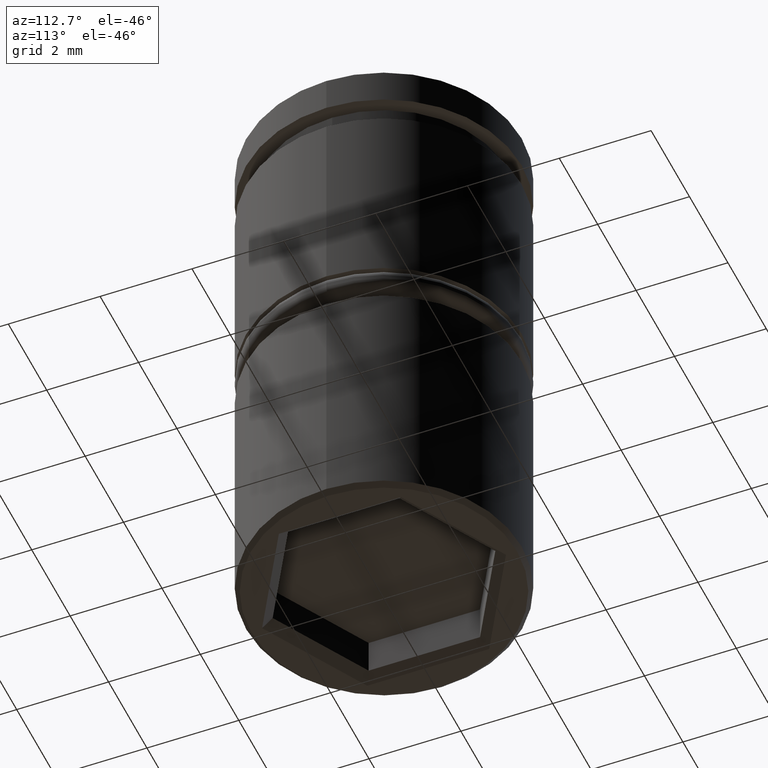
[diagram: clean part render]
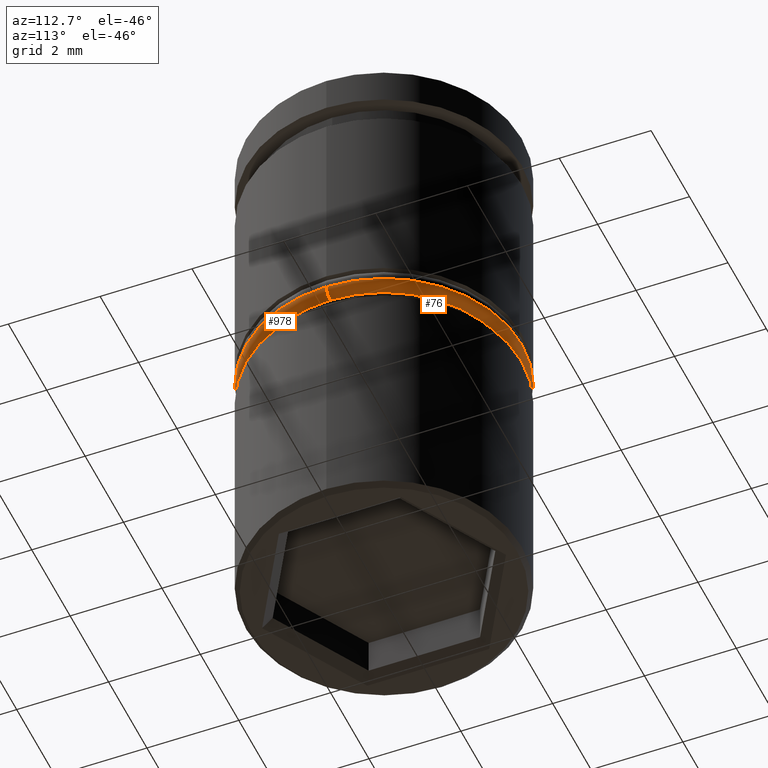
[diagram: same view with one multi-face feature highlighted, each face labeled with its STEP entity id]
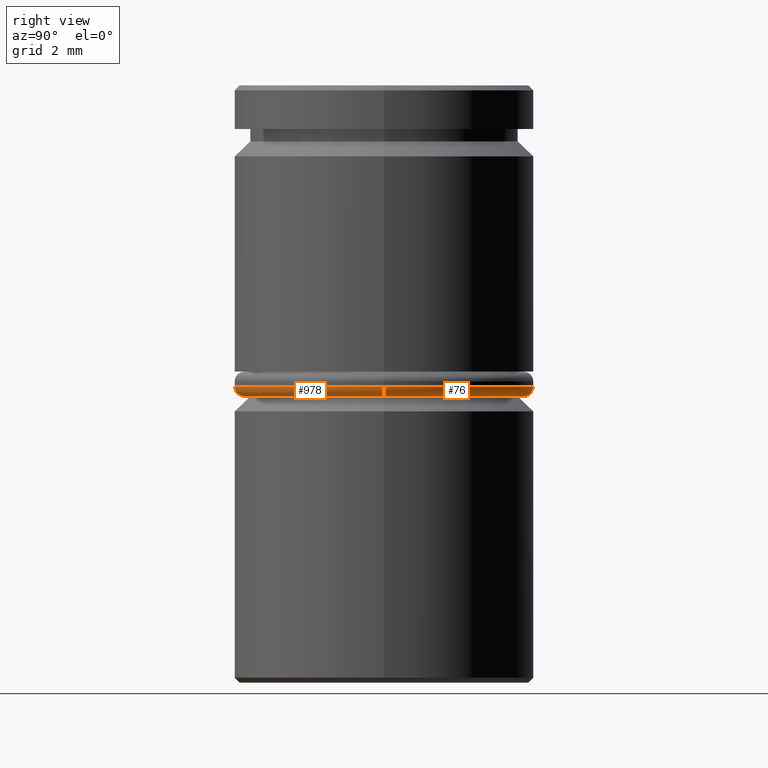
[diagram: same view with one multi-face feature highlighted, each face labeled with its STEP entity id]
A machine part, auxiliary view. The highlighted faces form ONE feature: a constant-radius fillet chain: 2 tangent blend faces with common blend radius 0.2 mm. The faces share edges in the B-rep.
A second angle (right view) of the same feature is appended — it is thin or edge-on in the first view.
Their STEP definitions:
[1] entity #76 (Torus):
#35 = CARTESIAN_POINT ( 'NONE',  ( 3.000000000000000444, 0.000000000000000000, -6.049999999999999822 ) ) ;
#40 = EDGE_CURVE ( 'NONE', #848, #593, #1037, .T. ) ;
#43 = CARTESIAN_POINT ( 'NONE',  ( -2.800000000000000266, 3.429011037612589276E-16, -6.049999999999999822 ) ) ;
#76 = ADVANCED_FACE ( 'NONE', ( #453 ), #310, .T. ) ;
#90 = DIRECTION ( 'NONE',  ( 0.000000000000000000, 0.000000000000000000, 1.000000000000000000 ) ) ;
#116 = AXIS2_PLACEMENT_3D ( 'NONE', #254, #811, #1174 ) ;
#196 = AXIS2_PLACEMENT_3D ( 'NONE', #795, #776, #437 ) ;
#200 = AXIS2_PLACEMENT_3D ( 'NONE', #358, #726, #1086 ) ;
#254 = CARTESIAN_POINT ( 'NONE',  ( 0.000000000000000000, 0.000000000000000000, -6.049999999999999822 ) ) ;
#267 = DIRECTION ( 'NONE',  ( 1.000000000000000000, 0.000000000000000000, 0.000000000000000000 ) ) ;
#297 = VERTEX_POINT ( 'NONE', #972 ) ;
#310 = TOROIDAL_SURFACE ( 'NONE', #116, 2.800000000000000266, 0.2000000000000000111 ) ;
#313 = AXIS2_PLACEMENT_3D ( 'NONE', #912, #90, #267 ) ;
#344 = CARTESIAN_POINT ( 'NONE',  ( 2.800000000000000266, 0.000000000000000000, -6.249999999999999112 ) ) ;
#352 = CIRCLE ( 'NONE', #313, 3.000000000000000444 ) ;
#358 = CARTESIAN_POINT ( 'NONE',  ( 0.000000000000000000, 0.000000000000000000, -6.249999999999999112 ) ) ;
#371 = AXIS2_PLACEMENT_3D ( 'NONE', #43, #867, #508 ) ;
#423 = ORIENTED_EDGE ( 'NONE', *, *, #40, .F. ) ;
#437 = DIRECTION ( 'NONE',  ( 0.000000000000000000, 0.000000000000000000, -1.000000000000000000 ) ) ;
#444 = EDGE_CURVE ( 'NONE', #593, #676, #352, .T. ) ;
#453 = FACE_OUTER_BOUND ( 'NONE', #1167, .T. ) ;
#508 = DIRECTION ( 'NONE',  ( -1.000000000000000000, 1.224646799147353207E-16, 0.000000000000000000 ) ) ;
#516 = ORIENTED_EDGE ( 'NONE', *, *, #444, .F. ) ;
#539 = EDGE_CURVE ( 'NONE', #297, #848, #947, .T. ) ;
#593 = VERTEX_POINT ( 'NONE', #35 ) ;
#676 = VERTEX_POINT ( 'NONE', #748 ) ;
#726 = DIRECTION ( 'NONE',  ( -0.000000000000000000, -0.000000000000000000, -1.000000000000000000 ) ) ;
#745 = EDGE_CURVE ( 'NONE', #297, #676, #1080, .T. ) ;
#748 = CARTESIAN_POINT ( 'NONE',  ( -3.000000000000000444, 3.673940397442060361E-16, -6.049999999999999822 ) ) ;
#776 = DIRECTION ( 'NONE',  ( 0.000000000000000000, -1.000000000000000000, 0.000000000000000000 ) ) ;
#795 = CARTESIAN_POINT ( 'NONE',  ( 2.800000000000000266, 0.000000000000000000, -6.049999999999999822 ) ) ;
#811 = DIRECTION ( 'NONE',  ( 0.000000000000000000, 0.000000000000000000, 1.000000000000000000 ) ) ;
#848 = VERTEX_POINT ( 'NONE', #344 ) ;
#867 = DIRECTION ( 'NONE',  ( 1.224646799147353207E-16, 1.000000000000000000, -0.000000000000000000 ) ) ;
#906 = ORIENTED_EDGE ( 'NONE', *, *, #745, .T. ) ;
#912 = CARTESIAN_POINT ( 'NONE',  ( 0.000000000000000000, 0.000000000000000000, -6.049999999999999822 ) ) ;
#947 = CIRCLE ( 'NONE', #200, 2.800000000000000266 ) ;
#972 = CARTESIAN_POINT ( 'NONE',  ( -2.800000000000000266, 3.551475717527324325E-16, -6.249999999999999112 ) ) ;
#1018 = ORIENTED_EDGE ( 'NONE', *, *, #539, .F. ) ;
#1037 = CIRCLE ( 'NONE', #196, 0.1999999999999996503 ) ;
#1080 = CIRCLE ( 'NONE', #371, 0.2000000000000000944 ) ;
#1086 = DIRECTION ( 'NONE',  ( 1.000000000000000000, 0.000000000000000000, 0.000000000000000000 ) ) ;
#1167 = EDGE_LOOP ( 'NONE', ( #1018, #906, #516, #423 ) ) ;
#1174 = DIRECTION ( 'NONE',  ( 1.000000000000000000, 0.000000000000000000, 0.000000000000000000 ) ) ;
[2] entity #978 (Torus):
#17 = ORIENTED_EDGE ( 'NONE', *, *, #40, .T. ) ;
#18 = CARTESIAN_POINT ( 'NONE',  ( 0.000000000000000000, 0.000000000000000000, -6.049999999999999822 ) ) ;
#35 = CARTESIAN_POINT ( 'NONE',  ( 3.000000000000000444, 0.000000000000000000, -6.049999999999999822 ) ) ;
#40 = EDGE_CURVE ( 'NONE', #848, #593, #1037, .T. ) ;
#43 = CARTESIAN_POINT ( 'NONE',  ( -2.800000000000000266, 3.429011037612589276E-16, -6.049999999999999822 ) ) ;
#84 = CIRCLE ( 'NONE', #1020, 3.000000000000000444 ) ;
#143 = AXIS2_PLACEMENT_3D ( 'NONE', #538, #903, #1090 ) ;
#144 = TOROIDAL_SURFACE ( 'NONE', #816, 2.800000000000000266, 0.2000000000000000111 ) ;
#168 = EDGE_CURVE ( 'NONE', #676, #593, #84, .T. ) ;
#196 = AXIS2_PLACEMENT_3D ( 'NONE', #795, #776, #437 ) ;
#297 = VERTEX_POINT ( 'NONE', #972 ) ;
#344 = CARTESIAN_POINT ( 'NONE',  ( 2.800000000000000266, 0.000000000000000000, -6.249999999999999112 ) ) ;
#361 = DIRECTION ( 'NONE',  ( 1.000000000000000000, 0.000000000000000000, 0.000000000000000000 ) ) ;
#371 = AXIS2_PLACEMENT_3D ( 'NONE', #43, #867, #508 ) ;
#437 = DIRECTION ( 'NONE',  ( 0.000000000000000000, 0.000000000000000000, -1.000000000000000000 ) ) ;
#481 = FACE_OUTER_BOUND ( 'NONE', #819, .T. ) ;
#504 = EDGE_CURVE ( 'NONE', #848, #297, #662, .T. ) ;
#508 = DIRECTION ( 'NONE',  ( -1.000000000000000000, 1.224646799147353207E-16, 0.000000000000000000 ) ) ;
#538 = CARTESIAN_POINT ( 'NONE',  ( 0.000000000000000000, 0.000000000000000000, -6.249999999999999112 ) ) ;
#593 = VERTEX_POINT ( 'NONE', #35 ) ;
#658 = ORIENTED_EDGE ( 'NONE', *, *, #504, .F. ) ;
#662 = CIRCLE ( 'NONE', #143, 2.800000000000000266 ) ;
#676 = VERTEX_POINT ( 'NONE', #748 ) ;
#733 = DIRECTION ( 'NONE',  ( 0.000000000000000000, 0.000000000000000000, 1.000000000000000000 ) ) ;
#743 = DIRECTION ( 'NONE',  ( 0.000000000000000000, 0.000000000000000000, 1.000000000000000000 ) ) ;
#745 = EDGE_CURVE ( 'NONE', #297, #676, #1080, .T. ) ;
#748 = CARTESIAN_POINT ( 'NONE',  ( -3.000000000000000444, 3.673940397442060361E-16, -6.049999999999999822 ) ) ;
#776 = DIRECTION ( 'NONE',  ( 0.000000000000000000, -1.000000000000000000, 0.000000000000000000 ) ) ;
#790 = ORIENTED_EDGE ( 'NONE', *, *, #168, .F. ) ;
#795 = CARTESIAN_POINT ( 'NONE',  ( 2.800000000000000266, 0.000000000000000000, -6.049999999999999822 ) ) ;
#816 = AXIS2_PLACEMENT_3D ( 'NONE', #18, #733, #1013 ) ;
#819 = EDGE_LOOP ( 'NONE', ( #1146, #658, #17, #790 ) ) ;
#848 = VERTEX_POINT ( 'NONE', #344 ) ;
#867 = DIRECTION ( 'NONE',  ( 1.224646799147353207E-16, 1.000000000000000000, -0.000000000000000000 ) ) ;
#903 = DIRECTION ( 'NONE',  ( -0.000000000000000000, -0.000000000000000000, -1.000000000000000000 ) ) ;
#972 = CARTESIAN_POINT ( 'NONE',  ( -2.800000000000000266, 3.551475717527324325E-16, -6.249999999999999112 ) ) ;
#978 = ADVANCED_FACE ( 'NONE', ( #481 ), #144, .T. ) ;
#1013 = DIRECTION ( 'NONE',  ( 1.000000000000000000, 0.000000000000000000, 0.000000000000000000 ) ) ;
#1020 = AXIS2_PLACEMENT_3D ( 'NONE', #1162, #743, #361 ) ;
#1037 = CIRCLE ( 'NONE', #196, 0.1999999999999996503 ) ;
#1080 = CIRCLE ( 'NONE', #371, 0.2000000000000000944 ) ;
#1090 = DIRECTION ( 'NONE',  ( 1.000000000000000000, 0.000000000000000000, 0.000000000000000000 ) ) ;
#1146 = ORIENTED_EDGE ( 'NONE', *, *, #745, .F. ) ;
#1162 = CARTESIAN_POINT ( 'NONE',  ( 0.000000000000000000, 0.000000000000000000, -6.049999999999999822 ) ) ;